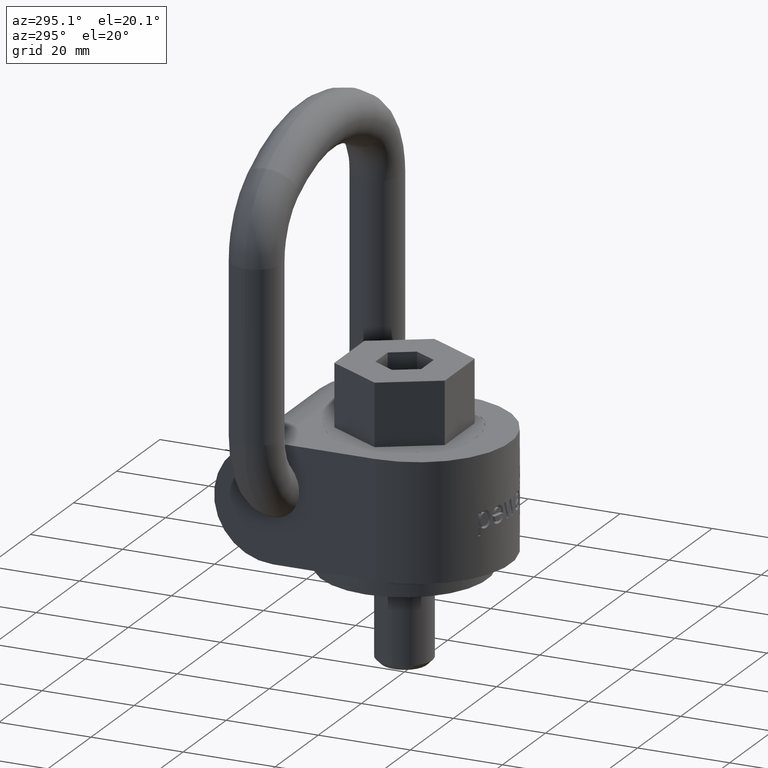
[diagram: clean part render]
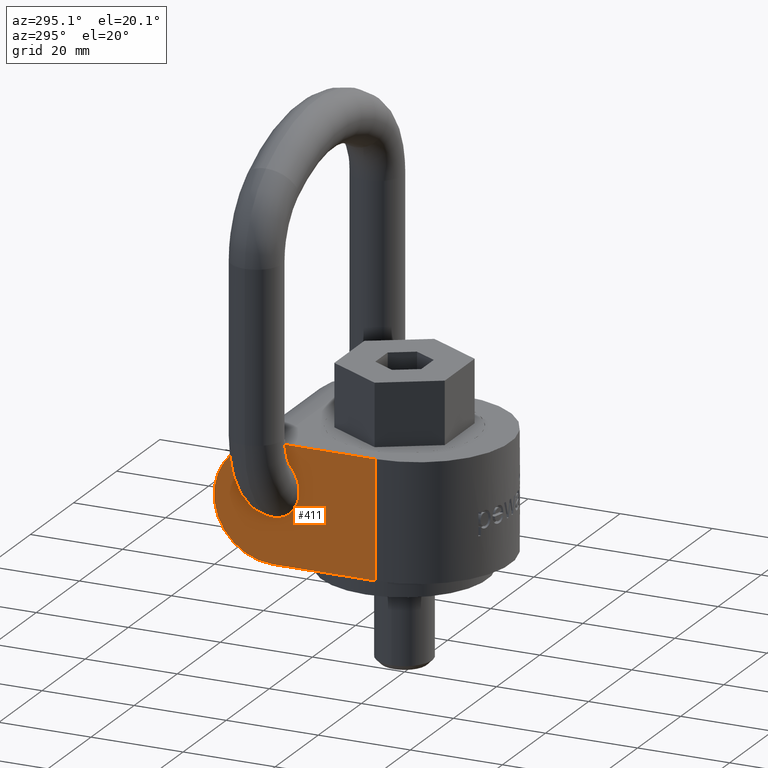
[diagram: same view with one face highlighted and labeled with its STEP entity id]
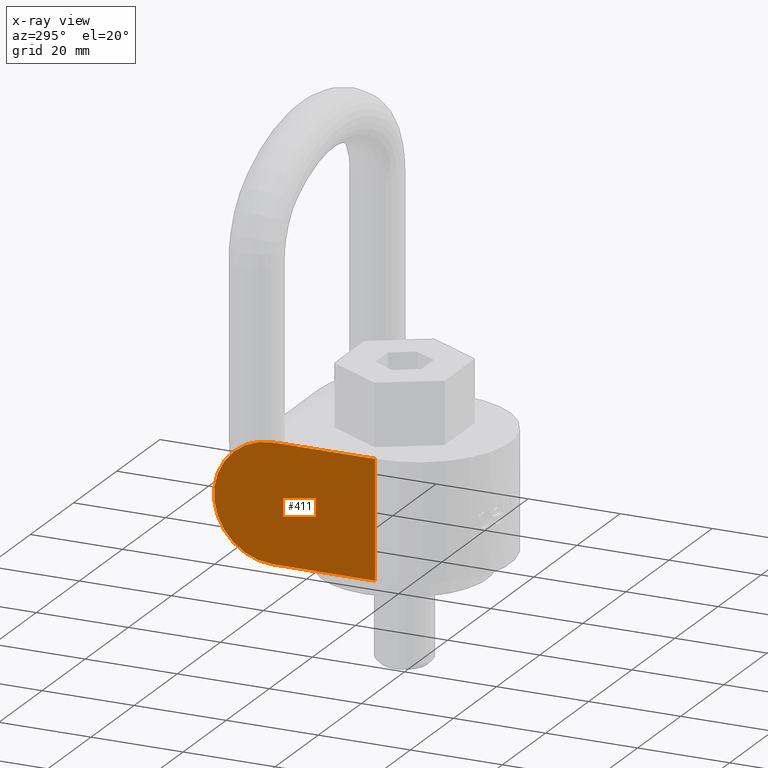
[diagram: x-ray of the same camera — body ghosted, the highlighted face saturated]
A machine part, auxiliary view. The second image highlights one B-rep face of the part: STEP entity #411.
The next image is the same camera in x-ray: the body ghosted, the highlighted face saturated — about 0% of this face is hidden behind the body in this view.
In plain terms, the highlighted planar face has unit normal (1, 0, 0).
Its self-contained STEP definition (entity closure, byte-faithful):
#246=FACE_OUTER_BOUND('',#640,.T.);
#350=PLANE('',#2456);
#411=ADVANCED_FACE('',(#246),#350,.F.);
#640=EDGE_LOOP('',(#1211,#1212,#1213,#1214));
#792=LINE('',#3677,#918);
#794=LINE('',#3799,#920);
#798=LINE('',#3809,#924);
#918=VECTOR('',#2617,1.);
#920=VECTOR('',#2621,1.);
#924=VECTOR('',#2629,1.);
#1103=CIRCLE('',#2452,12.755);
#1211=ORIENTED_EDGE('',*,*,#2012,.F.);
#1212=ORIENTED_EDGE('',*,*,#2008,.T.);
#1213=ORIENTED_EDGE('',*,*,#2017,.F.);
#1214=ORIENTED_EDGE('',*,*,#2019,.F.);
#1796=VERTEX_POINT('',#3672);
#1798=VERTEX_POINT('',#3676);
#1802=VERTEX_POINT('',#3800);
#1805=VERTEX_POINT('',#3808);
#2008=EDGE_CURVE('',#1796,#1798,#792,.T.);
#2012=EDGE_CURVE('',#1796,#1802,#794,.T.);
#2017=EDGE_CURVE('',#1805,#1798,#798,.T.);
#2019=EDGE_CURVE('',#1802,#1805,#1103,.T.);
#2452=AXIS2_PLACEMENT_3D('',#3813,#2634,#2635);
#2456=AXIS2_PLACEMENT_3D('',#3817,#2642,#2643);
#2617=DIRECTION('',(0.,1.3600340854385E-16,1.));
#2621=DIRECTION('',(0.,1.,1.15577451087051E-16));
#2629=DIRECTION('',(0.,-1.,3.28507227075736E-16));
#2634=DIRECTION('',(1.,0.,0.));
#2635=DIRECTION('',(0.,1.,0.));
#2642=DIRECTION('',(1.,0.,0.));
#2643=DIRECTION('',(0.,0.,-1.));
#3672=CARTESIAN_POINT('',(-20.,-3.00000000000001,9.36697495355901E-16));
#3676=CARTESIAN_POINT('',(-20.,-3.00000000000001,25.51));
#3677=CARTESIAN_POINT('',(-20.,-3.00000000000001,12.755));
#3799=CARTESIAN_POINT('',(-20.,-23.,-1.37485152638513E-15));
#3800=CARTESIAN_POINT('',(-20.,19.245,3.50771789478736E-15));
#3808=CARTESIAN_POINT('',(-20.,19.245,25.51));
#3809=CARTESIAN_POINT('',(-20.,19.245,25.51));
#3813=CARTESIAN_POINT('',(-20.,19.245,12.755));
#3817=CARTESIAN_POINT('',(-20.,19.245,12.755));